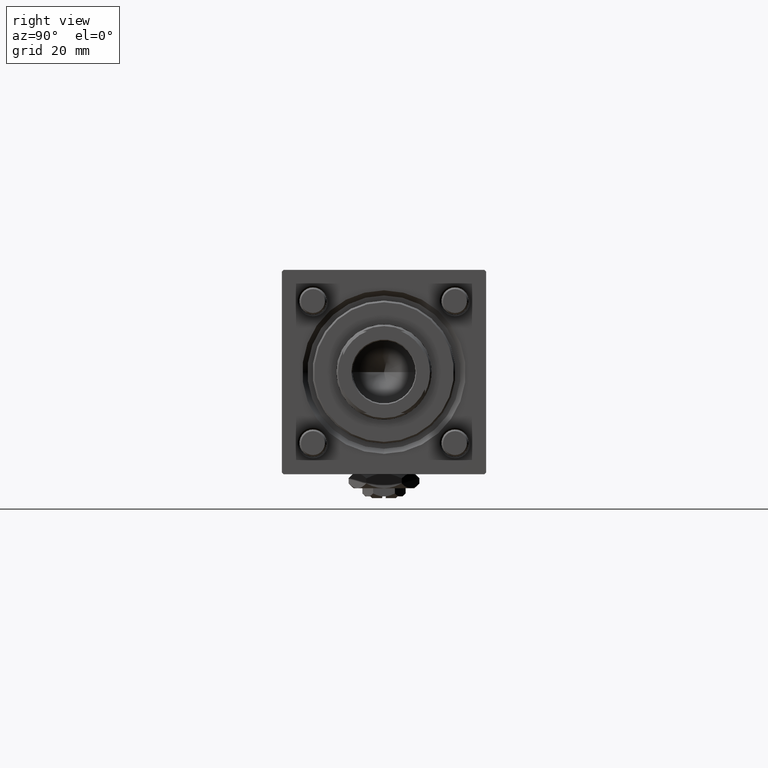
[diagram: clean part render]
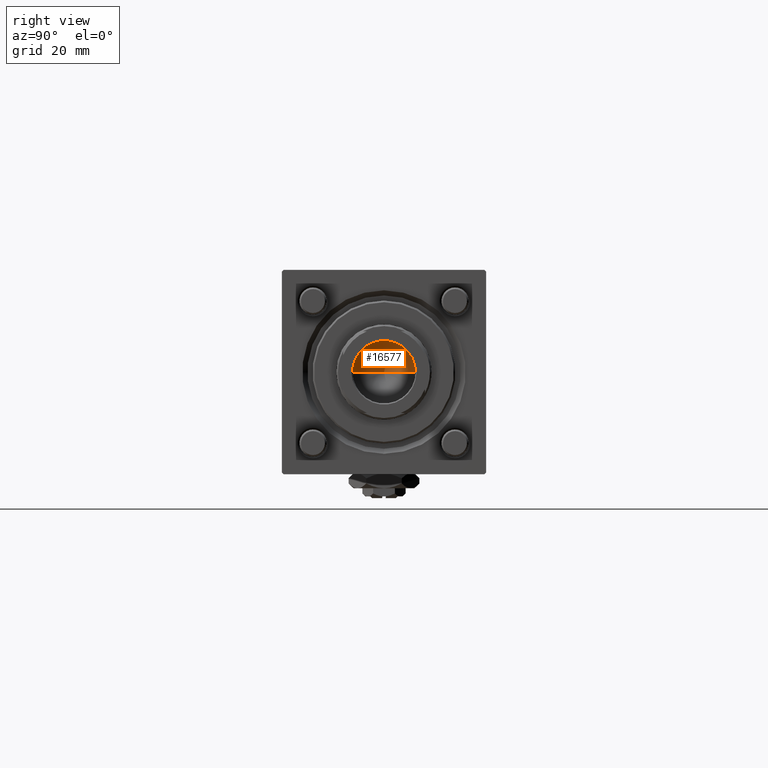
[diagram: same view with one face highlighted and labeled with its STEP entity id]
A machine part, right view. The second image highlights one B-rep face of the part: STEP entity #16577.
In plain terms, the highlighted conical surface has half-angle 59 deg.
Its self-contained STEP definition (entity closure, byte-faithful):
#5363 = VERTEX_POINT ( 'NONE', #41421 ) ;
#7027 = ORIENTED_EDGE ( 'NONE', *, *, #26855, .F. ) ;
#9335 = VECTOR ( 'NONE', #24734, 1000.000000000000000 ) ;
#10034 = DIRECTION ( 'NONE',  ( -0.000000000000000000, -0.000000000000000000, 1.000000000000000000 ) ) ;
#10324 = EDGE_LOOP ( 'NONE', ( #7027, #14614, #50612 ) ) ;
#11569 = CARTESIAN_POINT ( 'NONE',  ( 9.249999999999992895, 0.000000000000000000, 101.0000000000000000 ) ) ;
#12797 = CIRCLE ( 'NONE', #38350, 9.249999999999992895 ) ;
#13590 = CARTESIAN_POINT ( 'NONE',  ( 0.000000000000000000, 0.000000000000000000, 101.0000000000000000 ) ) ;
#14614 = ORIENTED_EDGE ( 'NONE', *, *, #50031, .T. ) ;
#15996 = DIRECTION ( 'NONE',  ( 1.000000000000000000, 0.000000000000000000, 0.000000000000000000 ) ) ;
#16412 = CARTESIAN_POINT ( 'NONE',  ( -9.249999999999992895, 1.132798289211300712E-15, 101.0000000000000000 ) ) ;
#16577 = ADVANCED_FACE ( 'NONE', ( #39077 ), #21643, .F. ) ;
#16763 = AXIS2_PLACEMENT_3D ( 'NONE', #33483, #20151, #15996 ) ;
#20151 = DIRECTION ( 'NONE',  ( -0.000000000000000000, -0.000000000000000000, 1.000000000000000000 ) ) ;
#20588 = LINE ( 'NONE', #16412, #9335 ) ;
#21643 = CONICAL_SURFACE ( 'NONE', #16763, 9.249999999999992895, 1.029744258676653423 ) ;
#24734 = DIRECTION ( 'NONE',  ( -0.8571673007021117785, 1.049727191138617956E-16, 0.5150380749100550437 ) ) ;
#25391 = DIRECTION ( 'NONE',  ( 0.8571673007021117785, 0.000000000000000000, 0.5150380749100550437 ) ) ;
#26254 = LINE ( 'NONE', #35421, #33414 ) ;
#26855 = EDGE_CURVE ( 'NONE', #5363, #58365, #26254, .T. ) ;
#31287 = CARTESIAN_POINT ( 'NONE',  ( -9.249999999999992895, 1.132798289211300712E-15, 101.0000000000000000 ) ) ;
#33414 = VECTOR ( 'NONE', #25391, 1000.000000000000000 ) ;
#33483 = CARTESIAN_POINT ( 'NONE',  ( 0.000000000000000000, 0.000000000000000000, 101.0000000000000000 ) ) ;
#35421 = CARTESIAN_POINT ( 'NONE',  ( 9.249999999999992895, 0.000000000000000000, 101.0000000000000000 ) ) ;
#38350 = AXIS2_PLACEMENT_3D ( 'NONE', #13590, #10034, #45568 ) ;
#39077 = FACE_OUTER_BOUND ( 'NONE', #10324, .T. ) ;
#40469 = EDGE_CURVE ( 'NONE', #57045, #58365, #12797, .T. ) ;
#41421 = CARTESIAN_POINT ( 'NONE',  ( -9.769621978240258809E-15, 0.000000000000000000, 95.44203927399506426 ) ) ;
#45568 = DIRECTION ( 'NONE',  ( 1.000000000000000000, 0.000000000000000000, 0.000000000000000000 ) ) ;
#50031 = EDGE_CURVE ( 'NONE', #5363, #57045, #20588, .T. ) ;
#50612 = ORIENTED_EDGE ( 'NONE', *, *, #40469, .T. ) ;
#57045 = VERTEX_POINT ( 'NONE', #31287 ) ;
#58365 = VERTEX_POINT ( 'NONE', #11569 ) ;